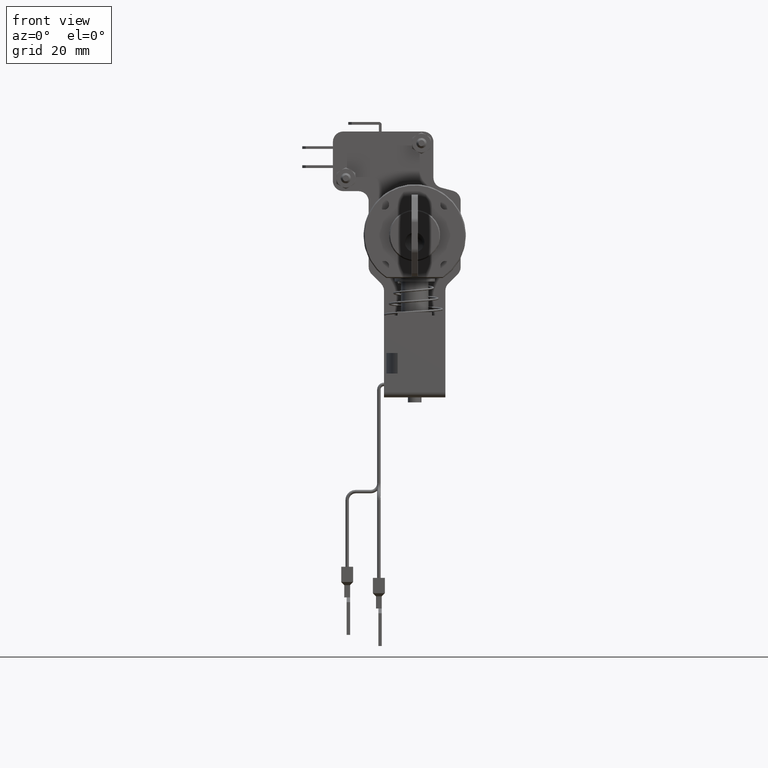
[diagram: clean part render]
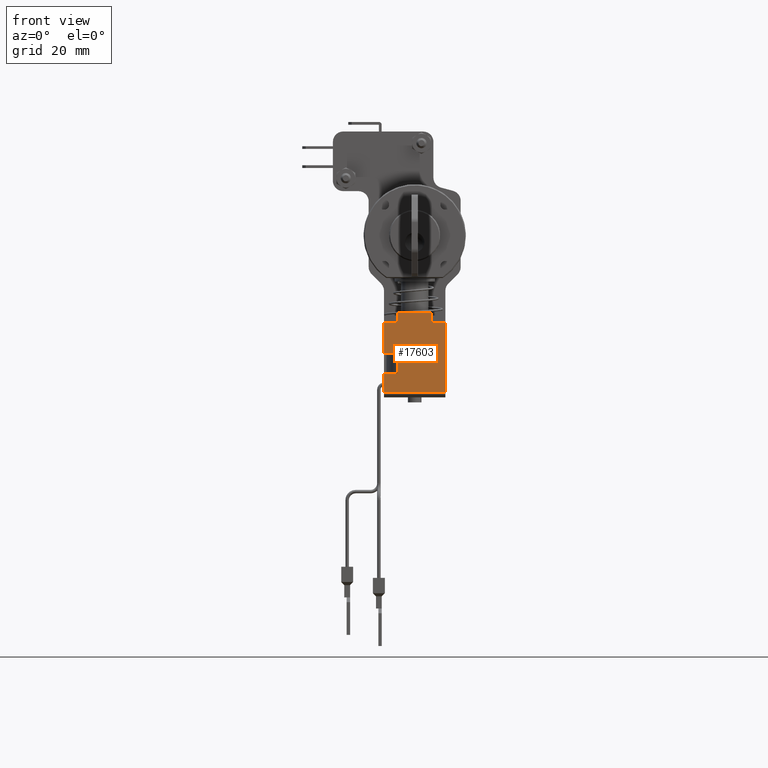
[diagram: same view with one face highlighted and labeled with its STEP entity id]
A machine part, front view. The second image highlights one B-rep face of the part: STEP entity #17603.
In plain terms, the highlighted face is a freeform B-spline surface patch.
Its self-contained STEP definition (entity closure, byte-faithful):
#17437=CARTESIAN_POINT('',(5.0,-9.0,-25.500000000000000));
#17438=VERTEX_POINT('',#17437);
#17479=CARTESIAN_POINT('',(5.0,9.0,-25.500000000000000));
#17480=VERTEX_POINT('',#17479);
#17486=CARTESIAN_POINT('',(5.0,5.000000000000091,-25.500000000000000));
#17487=VERTEX_POINT('',#17486);
#17488=CARTESIAN_POINT('',(5.0,9.0,-25.500000000000000));
#17489=CARTESIAN_POINT('',(5.0,5.000000000000091,-25.500000000000000));
#17490=QUASI_UNIFORM_CURVE('',1,(#17488,#17489),.UNSPECIFIED.,.F.,.U.);
#17491=EDGE_CURVE('',#17480,#17487,#17490,.T.);
#17507=CARTESIAN_POINT('',(5.0,-4.999999999999920,-25.500000000000000));
#17508=VERTEX_POINT('',#17507);
#17514=CARTESIAN_POINT('',(5.0,-9.0,-25.500000000000000));
#17515=CARTESIAN_POINT('',(5.0,-4.999999999999920,-25.500000000000000));
#17516=QUASI_UNIFORM_CURVE('',1,(#17514,#17515),.UNSPECIFIED.,.F.,.U.);
#17517=EDGE_CURVE('',#17438,#17508,#17516,.T.);
#17528=CARTESIAN_POINT('',(5.0,-9.899099965112509,-21.326175045547561));
#17529=CARTESIAN_POINT('',(5.0,-9.899099965112509,-47.173825584771571));
#17530=CARTESIAN_POINT('',(5.0,9.899100447910131,-21.326175045547561));
#17531=CARTESIAN_POINT('',(5.0,9.899100447910131,-47.173825584771571));
#17532=B_SPLINE_SURFACE_WITH_KNOTS('',1,1,((#17528,#17530),(#17529,#17531)),.UNSPECIFIED.,.F.,.F.,.U.,(2,2),(2,2),(0.0,25.847650539224009),(0.0,19.798200413022641),.UNSPECIFIED.);
#17533=CARTESIAN_POINT('',(5.0,5.000000000000091,-22.500000000000000));
#17534=VERTEX_POINT('',#17533);
#17535=CARTESIAN_POINT('',(5.0,5.000000000000091,-25.500000000000000));
#17536=CARTESIAN_POINT('',(5.0,5.000000000000091,-22.500000000000000));
#17537=QUASI_UNIFORM_CURVE('',1,(#17535,#17536),.UNSPECIFIED.,.F.,.U.);
#17538=EDGE_CURVE('',#17487,#17534,#17537,.T.);
#17539=ORIENTED_EDGE('',*,*,#17538,.F.);
#17540=ORIENTED_EDGE('',*,*,#17491,.F.);
#17541=CARTESIAN_POINT('',(5.0,9.0,-34.500000000000000));
#17542=VERTEX_POINT('',#17541);
#17543=CARTESIAN_POINT('',(5.0,9.0,-34.500000000000000));
#17544=CARTESIAN_POINT('',(5.0,9.0,-25.500000000000000));
#17545=QUASI_UNIFORM_CURVE('',1,(#17543,#17544),.UNSPECIFIED.,.F.,.U.);
#17546=EDGE_CURVE('',#17542,#17480,#17545,.T.);
#17547=ORIENTED_EDGE('',*,*,#17546,.F.);
#17548=CARTESIAN_POINT('',(5.0,5.000000000000091,-34.500000000000000));
#17549=VERTEX_POINT('',#17548);
#17550=CARTESIAN_POINT('',(5.0,9.0,-34.500000000000000));
#17551=CARTESIAN_POINT('',(5.0,5.000000000000091,-34.500000000000000));
#17552=QUASI_UNIFORM_CURVE('',1,(#17550,#17551),.UNSPECIFIED.,.F.,.U.);
#17553=EDGE_CURVE('',#17542,#17549,#17552,.T.);
#17554=ORIENTED_EDGE('',*,*,#17553,.T.);
#17555=CARTESIAN_POINT('',(5.0,5.000000000000091,-40.500000000000000));
#17556=VERTEX_POINT('',#17555);
#17557=CARTESIAN_POINT('',(5.0,5.000000000000091,-34.500000000000000));
#17558=CARTESIAN_POINT('',(5.0,5.000000000000091,-40.500000000000000));
#17559=QUASI_UNIFORM_CURVE('',1,(#17557,#17558),.UNSPECIFIED.,.F.,.U.);
#17560=EDGE_CURVE('',#17549,#17556,#17559,.T.);
#17561=ORIENTED_EDGE('',*,*,#17560,.T.);
#17562=CARTESIAN_POINT('',(5.0,9.0,-40.500000000000000));
#17563=VERTEX_POINT('',#17562);
#17564=CARTESIAN_POINT('',(5.0,5.000000000000091,-40.500000000000000));
#17565=CARTESIAN_POINT('',(5.0,9.0,-40.500000000000000));
#17566=QUASI_UNIFORM_CURVE('',1,(#17564,#17565),.UNSPECIFIED.,.F.,.U.);
#17567=EDGE_CURVE('',#17556,#17563,#17566,.T.);
#17568=ORIENTED_EDGE('',*,*,#17567,.T.);
#17569=CARTESIAN_POINT('',(5.0,9.0,-46.0));
#17570=VERTEX_POINT('',#17569);
#17571=CARTESIAN_POINT('',(5.0,9.0,-46.0));
#17572=CARTESIAN_POINT('',(5.0,9.0,-40.500000000000000));
#17573=QUASI_UNIFORM_CURVE('',1,(#17571,#17572),.UNSPECIFIED.,.F.,.U.);
#17574=EDGE_CURVE('',#17570,#17563,#17573,.T.);
#17575=ORIENTED_EDGE('',*,*,#17574,.F.);
#17576=CARTESIAN_POINT('',(5.0,-9.0,-46.0));
#17577=VERTEX_POINT('',#17576);
#17578=CARTESIAN_POINT('',(5.0,9.0,-46.0));
#17579=CARTESIAN_POINT('',(5.0,-9.0,-46.0));
#17580=QUASI_UNIFORM_CURVE('',1,(#17578,#17579),.UNSPECIFIED.,.F.,.U.);
#17581=EDGE_CURVE('',#17570,#17577,#17580,.T.);
#17582=ORIENTED_EDGE('',*,*,#17581,.T.);
#17583=CARTESIAN_POINT('',(5.0,-9.0,-46.0));
#17584=CARTESIAN_POINT('',(5.0,-9.0,-25.500000000000000));
#17585=QUASI_UNIFORM_CURVE('',1,(#17583,#17584),.UNSPECIFIED.,.F.,.U.);
#17586=EDGE_CURVE('',#17577,#17438,#17585,.T.);
#17587=ORIENTED_EDGE('',*,*,#17586,.T.);
#17588=ORIENTED_EDGE('',*,*,#17517,.T.);
#17589=CARTESIAN_POINT('',(5.0,-4.999999999999920,-22.500000000000000));
#17590=VERTEX_POINT('',#17589);
#17591=CARTESIAN_POINT('',(5.0,-4.999999999999920,-25.500000000000000));
#17592=CARTESIAN_POINT('',(5.0,-4.999999999999920,-22.500000000000000));
#17593=QUASI_UNIFORM_CURVE('',1,(#17591,#17592),.UNSPECIFIED.,.F.,.U.);
#17594=EDGE_CURVE('',#17508,#17590,#17593,.T.);
#17595=ORIENTED_EDGE('',*,*,#17594,.T.);
#17596=CARTESIAN_POINT('',(5.0,5.000000000000091,-22.500000000000000));
#17597=CARTESIAN_POINT('',(5.0,-4.999999999999920,-22.500000000000000));
#17598=QUASI_UNIFORM_CURVE('',1,(#17596,#17597),.UNSPECIFIED.,.F.,.U.);
#17599=EDGE_CURVE('',#17534,#17590,#17598,.T.);
#17600=ORIENTED_EDGE('',*,*,#17599,.F.);
#17601=EDGE_LOOP('',(#17539,#17540,#17547,#17554,#17561,#17568,#17575,#17582,#17587,#17588,#17595,#17600));
#17602=FACE_OUTER_BOUND('',#17601,.T.);
#17603=ADVANCED_FACE('',(#17602),#17532,.F.);